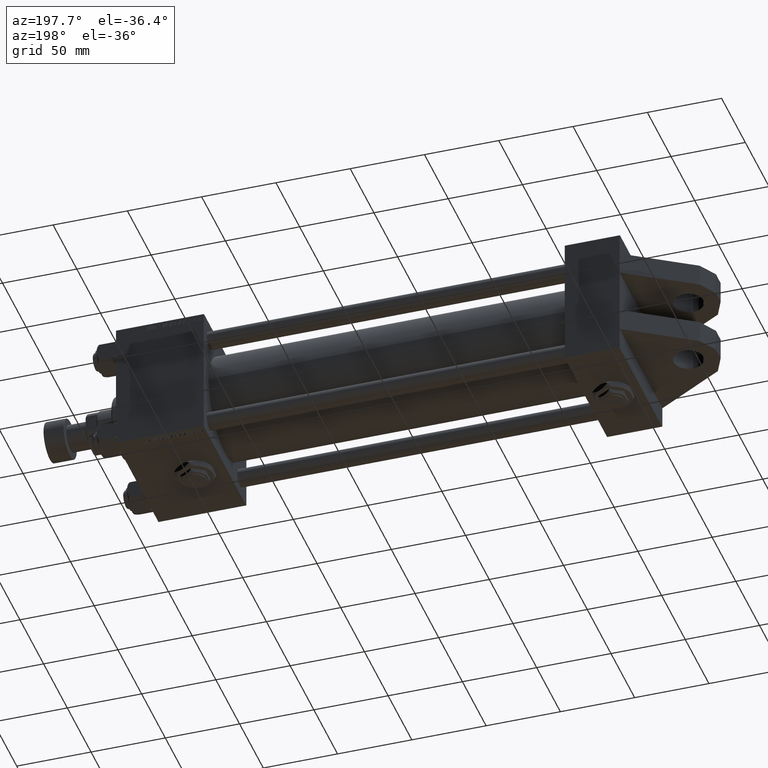
[diagram: clean part render]
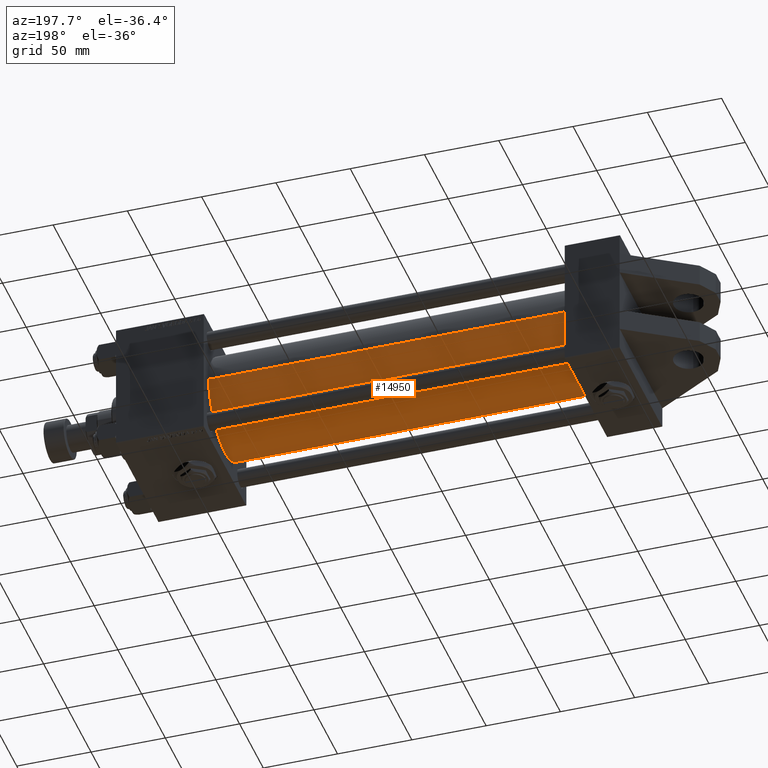
[diagram: same view with one face highlighted and labeled with its STEP entity id]
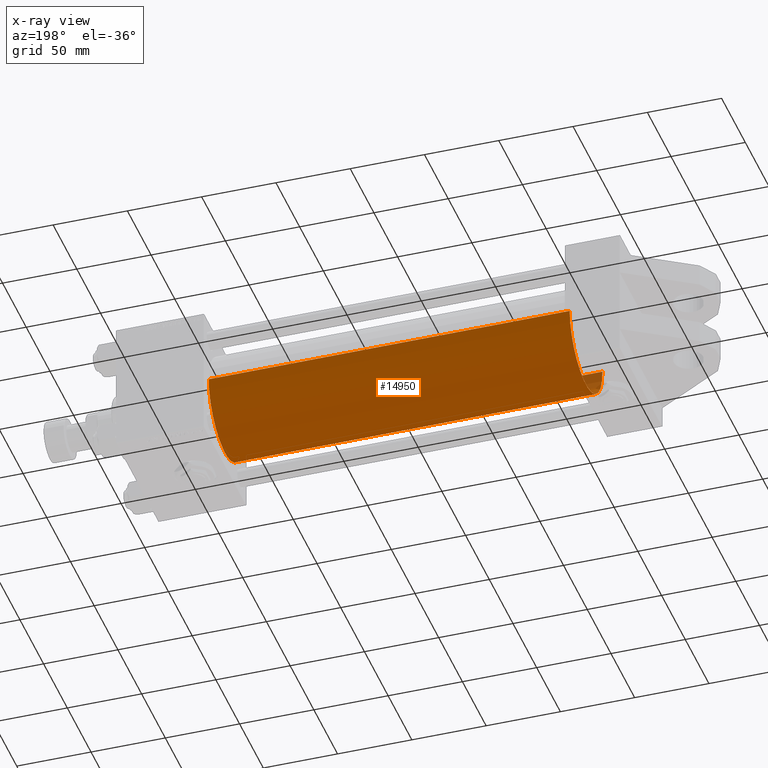
[diagram: x-ray of the same camera — body ghosted, the highlighted face saturated]
A machine part, auxiliary view. The second image highlights one B-rep face of the part: STEP entity #14950.
The next image is the same camera in x-ray: the body ghosted, the highlighted face saturated — about 1% of this face is hidden behind the body in this view.
In plain terms, the highlighted cylindrical surface (partial cylindrical patch) has radius 34.5 mm, axis along (-1, -0, 0).
Its self-contained STEP definition (entity closure, byte-faithful):
#1679 = FACE_OUTER_BOUND ( 'NONE', #40244, .T. ) ;
#2361 = EDGE_CURVE ( 'NONE', #30549, #6665, #29316, .T. ) ;
#5157 = CARTESIAN_POINT ( 'NONE',  ( 37.00000000000000711, -3.469446951953614189E-15, 34.49999999999999289 ) ) ;
#6665 = VERTEX_POINT ( 'NONE', #5157 ) ;
#10876 = DIRECTION ( 'NONE',  ( 1.000000000000000000, -0.000000000000000000, 0.000000000000000000 ) ) ;
#11280 = CARTESIAN_POINT ( 'NONE',  ( 279.9999999999999432, -3.469446951953614189E-15, 34.49999999999999289 ) ) ;
#12436 = AXIS2_PLACEMENT_3D ( 'NONE', #47102, #10876, #18033 ) ;
#13991 = ORIENTED_EDGE ( 'NONE', *, *, #47814, .F. ) ;
#14335 = EDGE_CURVE ( 'NONE', #22762, #30549, #35718, .T. ) ;
#14950 = ADVANCED_FACE ( 'NONE', ( #1679 ), #25452, .T. ) ;
#16085 = AXIS2_PLACEMENT_3D ( 'NONE', #33379, #24676, #29682 ) ;
#16508 = DIRECTION ( 'NONE',  ( 1.000000000000000000, 0.000000000000000000, 0.000000000000000000 ) ) ;
#18033 = DIRECTION ( 'NONE',  ( 0.000000000000000000, 0.000000000000000000, 1.000000000000000000 ) ) ;
#19249 = ORIENTED_EDGE ( 'NONE', *, *, #37633, .F. ) ;
#19328 = DIRECTION ( 'NONE',  ( -1.000000000000000000, -0.000000000000000000, -0.000000000000000000 ) ) ;
#19482 = CIRCLE ( 'NONE', #51565, 34.49999999999999289 ) ;
#21453 = CARTESIAN_POINT ( 'NONE',  ( 37.00000000000000711, 7.555845051047534515E-16, -34.49999999999999289 ) ) ;
#22762 = VERTEX_POINT ( 'NONE', #41320 ) ;
#23567 = ORIENTED_EDGE ( 'NONE', *, *, #14335, .T. ) ;
#24676 = DIRECTION ( 'NONE',  ( -1.000000000000000000, -0.000000000000000000, -0.000000000000000000 ) ) ;
#25452 = CYLINDRICAL_SURFACE ( 'NONE', #16085, 34.49999999999999289 ) ;
#27409 = DIRECTION ( 'NONE',  ( -1.000000000000000000, -0.000000000000000000, -0.000000000000000000 ) ) ;
#29316 = CIRCLE ( 'NONE', #12436, 34.49999999999999289 ) ;
#29358 = ORIENTED_EDGE ( 'NONE', *, *, #2361, .T. ) ;
#29682 = DIRECTION ( 'NONE',  ( 0.000000000000000000, 0.000000000000000000, 1.000000000000000000 ) ) ;
#30549 = VERTEX_POINT ( 'NONE', #21453 ) ;
#30558 = VERTEX_POINT ( 'NONE', #45783 ) ;
#32629 = DIRECTION ( 'NONE',  ( 0.000000000000000000, 0.000000000000000000, -1.000000000000000000 ) ) ;
#33379 = CARTESIAN_POINT ( 'NONE',  ( 279.9999999999999432, -3.469446951953614189E-15, 0.000000000000000000 ) ) ;
#35718 = LINE ( 'NONE', #47870, #47303 ) ;
#37633 = EDGE_CURVE ( 'NONE', #22762, #30558, #19482, .T. ) ;
#40244 = EDGE_LOOP ( 'NONE', ( #19249, #23567, #29358, #13991 ) ) ;
#41320 = CARTESIAN_POINT ( 'NONE',  ( 279.9999999999999432, 7.555845051047534515E-16, -34.49999999999999289 ) ) ;
#44028 = CARTESIAN_POINT ( 'NONE',  ( 279.9999999999999432, -3.469446951953614189E-15, 0.000000000000000000 ) ) ;
#45783 = CARTESIAN_POINT ( 'NONE',  ( 279.9999999999999432, -3.469446951953614189E-15, 34.49999999999999289 ) ) ;
#45859 = VECTOR ( 'NONE', #27409, 1000.000000000000000 ) ;
#47102 = CARTESIAN_POINT ( 'NONE',  ( 37.00000000000000711, -3.469446951953614189E-15, 0.000000000000000000 ) ) ;
#47303 = VECTOR ( 'NONE', #19328, 1000.000000000000000 ) ;
#47505 = LINE ( 'NONE', #11280, #45859 ) ;
#47814 = EDGE_CURVE ( 'NONE', #30558, #6665, #47505, .T. ) ;
#47870 = CARTESIAN_POINT ( 'NONE',  ( 279.9999999999999432, 7.555845051047534515E-16, -34.49999999999999289 ) ) ;
#51565 = AXIS2_PLACEMENT_3D ( 'NONE', #44028, #16508, #32629 ) ;